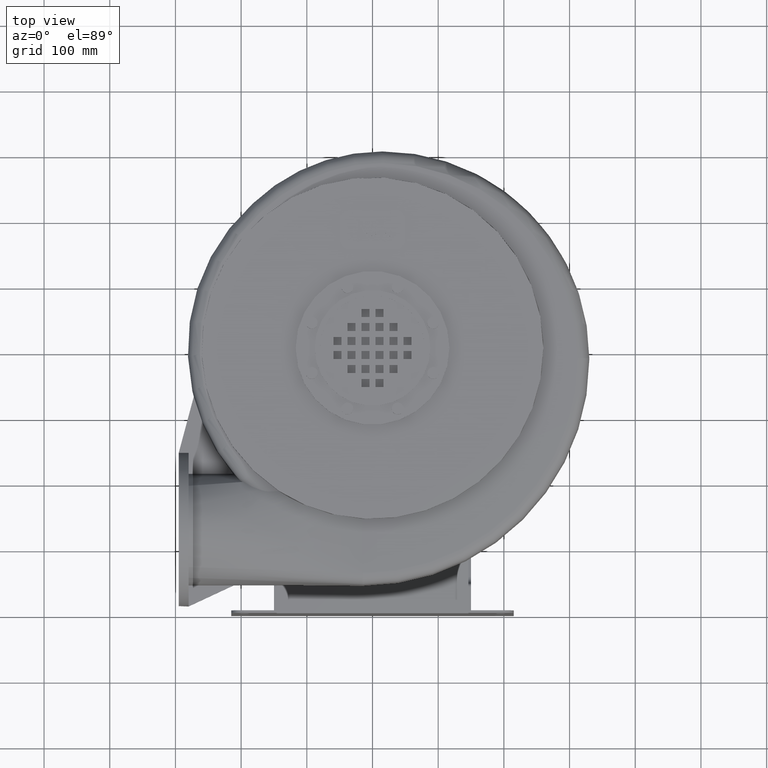
[diagram: clean part render]
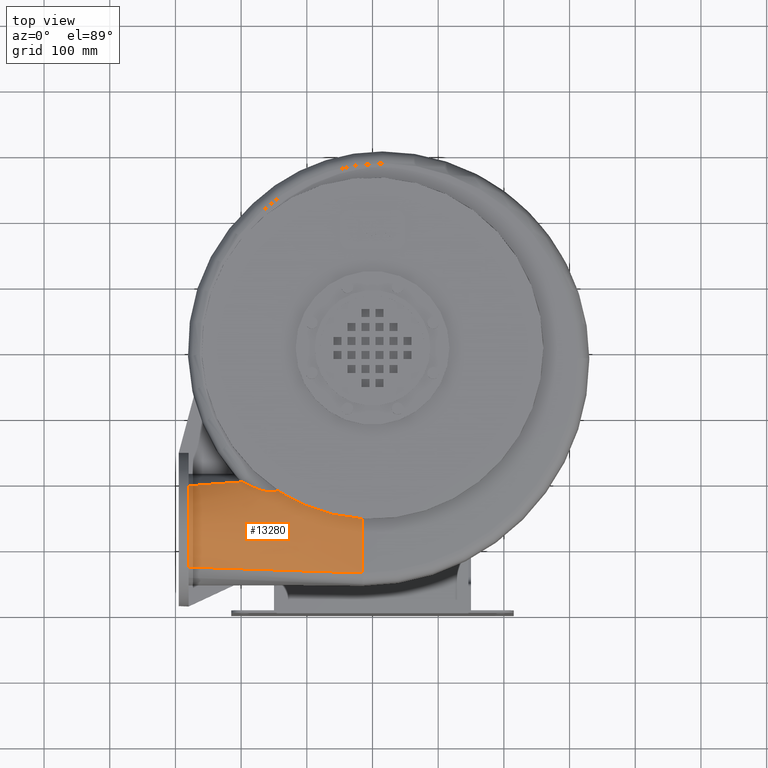
[diagram: same view with one face highlighted and labeled with its STEP entity id]
A machine part, top view. The second image highlights one B-rep face of the part: STEP entity #13280.
In plain terms, the highlighted face is a freeform B-spline surface patch.
Its self-contained STEP definition (entity closure, byte-faithful):
#1196=LINE('',#23119,#2368);
#1197=LINE('',#23121,#2369);
#1198=LINE('',#23122,#2370);
#2368=VECTOR('',#16576,9.02669988294015);
#2369=VECTOR('',#16577,56.5967453950647);
#2370=VECTOR('',#16578,16.809607673647);
#2730=B_SPLINE_CURVE_WITH_KNOTS('',3,(#22842,#22843,#22844,#22845,#22846,
#22847,#22848,#22849),.UNSPECIFIED.,.F.,.F.,(4,2,2,4),(0.,2.90405011560865,
4.6215907110657,5.10169561148826),.UNSPECIFIED.);
#2735=B_SPLINE_CURVE_WITH_KNOTS('',3,(#22955,#22956,#22957,#22958),
 .UNSPECIFIED.,.F.,.F.,(4,4),(0.,1.),.UNSPECIFIED.);
#2742=B_SPLINE_CURVE_WITH_KNOTS('',3,(#23100,#23101,#23102,#23103,#23104,
#23105,#23106,#23107),.UNSPECIFIED.,.F.,.F.,(4,2,2,4),(-13.3114565568221,
-9.26016200487189,-4.28879452915499,-2.76275450276327),.UNSPECIFIED.);
#2743=B_SPLINE_CURVE_WITH_KNOTS('',3,(#23108,#23109,#23110,#23111),
 .UNSPECIFIED.,.F.,.F.,(4,4),(10.6015815525924,12.0835696184824),
 .UNSPECIFIED.);
#2744=B_SPLINE_CURVE_WITH_KNOTS('',3,(#23113,#23114,#23115,#23116),
 .UNSPECIFIED.,.F.,.F.,(4,4),(0.687906346211005,1.),.UNSPECIFIED.);
#2922=B_SPLINE_SURFACE_WITH_KNOTS('',3,3,((#23066,#23067,#23068,#23069),
(#23070,#23071,#23072,#23073),(#23074,#23075,#23076,#23077),(#23078,#23079,
#23080,#23081),(#23082,#23083,#23084,#23085),(#23086,#23087,#23088,#23089),
(#23090,#23091,#23092,#23093),(#23094,#23095,#23096,#23097)),
 .UNSPECIFIED.,.F.,.F.,.F.,(4,1,1,1,1,4),(4,4),(0.,0.142857142857143,0.285714285714286,
0.571428571428571,0.857142857142857,1.),(0.,1.),.UNSPECIFIED.);
#3822=FACE_OUTER_BOUND('',#4644,.T.);
#4644=EDGE_LOOP('',(#11300,#11301,#11302,#11303,#11304,#11305,#11306,#11307,
#11308));
#4927=CIRCLE('',#14006,85.);
#6090=VERTEX_POINT('',#22806);
#6098=VERTEX_POINT('',#22840);
#6099=VERTEX_POINT('',#22841);
#6113=VERTEX_POINT('',#22954);
#6122=VERTEX_POINT('',#23098);
#6123=VERTEX_POINT('',#23099);
#6124=VERTEX_POINT('',#23112);
#6125=VERTEX_POINT('',#23118);
#6126=VERTEX_POINT('',#23120);
#7843=EDGE_CURVE('',#6098,#6099,#2730,.T.);
#7866=EDGE_CURVE('',#6090,#6113,#2735,.T.);
#7879=EDGE_CURVE('',#6122,#6123,#2742,.T.);
#7880=EDGE_CURVE('',#6099,#6123,#2743,.T.);
#7881=EDGE_CURVE('',#6098,#6124,#2744,.T.);
#7882=EDGE_CURVE('',#6113,#6124,#4927,.T.);
#7883=EDGE_CURVE('',#6090,#6125,#1196,.T.);
#7884=EDGE_CURVE('',#6125,#6126,#1197,.T.);
#7885=EDGE_CURVE('',#6122,#6126,#1198,.T.);
#11300=ORIENTED_EDGE('',*,*,#7879,.T.);
#11301=ORIENTED_EDGE('',*,*,#7880,.F.);
#11302=ORIENTED_EDGE('',*,*,#7843,.F.);
#11303=ORIENTED_EDGE('',*,*,#7881,.T.);
#11304=ORIENTED_EDGE('',*,*,#7882,.F.);
#11305=ORIENTED_EDGE('',*,*,#7866,.F.);
#11306=ORIENTED_EDGE('',*,*,#7883,.T.);
#11307=ORIENTED_EDGE('',*,*,#7884,.T.);
#11308=ORIENTED_EDGE('',*,*,#7885,.F.);
#13280=ADVANCED_FACE('',(#3822),#2922,.T.);
#14006=AXIS2_PLACEMENT_3D('',#23117,#16574,#16575);
#16574=DIRECTION('center_axis',(-1.,-5.51295955848887E-15,2.21867473071668E-15));
#16575=DIRECTION('ref_axis',(-2.21867473071667E-15,-4.67343487721603E-16,
-1.));
#16576=DIRECTION('',(-5.51295955848887E-15,1.,-4.67343487721591E-16));
#16577=DIRECTION('',(-5.51295955848887E-15,1.,-4.67343487721591E-16));
#16578=DIRECTION('',(5.51295955848887E-15,-1.,4.67343487721591E-16));
#22806=CARTESIAN_POINT('',(-14.9999999999986,57.9999999999984,450.499999999998));
#22840=CARTESIAN_POINT('',(-197.295181745916,196.831053374247,441.033999099304));
#22841=CARTESIAN_POINT('',(-157.587203799283,182.060427905473,450.499999999998));
#22842=CARTESIAN_POINT('Ctrl Pts',(-197.295181745916,196.831053374247,441.033999099304));
#22843=CARTESIAN_POINT('Ctrl Pts',(-189.828588804997,192.133014794327,445.01947993747));
#22844=CARTESIAN_POINT('Ctrl Pts',(-180.857535945571,187.978626392138,447.475752044286));
#22845=CARTESIAN_POINT('Ctrl Pts',(-168.574453891699,183.710993882681,449.704578514907));
#22846=CARTESIAN_POINT('Ctrl Pts',(-164.200885050813,182.559406574317,450.211587700185));
#22847=CARTESIAN_POINT('Ctrl Pts',(-159.656877136107,182.074567111144,450.462846296018));
#22848=CARTESIAN_POINT('Ctrl Pts',(-158.603961252658,182.01557164368,450.499999999998));
#22849=CARTESIAN_POINT('Ctrl Pts',(-157.587203799283,182.060427905472,450.499999999998));
#22954=CARTESIAN_POINT('',(-279.999999999999,67.0329588519807,445.16769370456));
#22955=CARTESIAN_POINT('Ctrl Pts',(-14.9999999999986,57.9999999999984,450.499999999998));
#22956=CARTESIAN_POINT('Ctrl Pts',(-103.333333333332,61.0109862839925,448.722564568185));
#22957=CARTESIAN_POINT('Ctrl Pts',(-191.666666666665,64.0219725679866,446.945129136373));
#22958=CARTESIAN_POINT('Ctrl Pts',(-279.999999999999,67.0329588519807,445.16769370456));
#23066=CARTESIAN_POINT('Ctrl Pts',(-14.9999999999986,57.9999999999984,450.499999999998));
#23067=CARTESIAN_POINT('Ctrl Pts',(-103.333333333332,61.0109862839925,448.722564568185));
#23068=CARTESIAN_POINT('Ctrl Pts',(-191.666666666665,64.0219725679866,446.945129136373));
#23069=CARTESIAN_POINT('Ctrl Pts',(-279.999999999999,67.0329588519807,445.16769370456));
#23070=CARTESIAN_POINT('Ctrl Pts',(-14.9999999999987,65.2380952380936,450.499999999998));
#23071=CARTESIAN_POINT('Ctrl Pts',(-103.333333333332,67.4505531265338,450.231483107123));
#23072=CARTESIAN_POINT('Ctrl Pts',(-191.666666666665,69.6660780192344,449.954373453984));
#23073=CARTESIAN_POINT('Ctrl Pts',(-279.999999999999,71.8785359076745,449.685856561109));
#23074=CARTESIAN_POINT('Ctrl Pts',(-14.9999999999988,79.7142857142841,450.499999999998));
#23075=CARTESIAN_POINT('Ctrl Pts',(-103.333333333332,80.6876974659833,452.856827533023));
#23076=CARTESIAN_POINT('Ctrl Pts',(-191.666666666665,81.6607268638071,455.216051596125));
#23077=CARTESIAN_POINT('Ctrl Pts',(-279.999999999999,82.6341386155062,457.57287912915));
#23078=CARTESIAN_POINT('Ctrl Pts',(-14.9999999999989,108.666666666665,450.499999999998));
#23079=CARTESIAN_POINT('Ctrl Pts',(-103.333333333332,108.179005437688,456.331094247914));
#23080=CARTESIAN_POINT('Ctrl Pts',(-191.666666666665,107.69219983285,462.156932385368));
#23081=CARTESIAN_POINT('Ctrl Pts',(-279.999999999999,107.204538603873,467.988026633284));
#23082=CARTESIAN_POINT('Ctrl Pts',(-14.9999999999991,144.857142857141,450.499999999998));
#23083=CARTESIAN_POINT('Ctrl Pts',(-103.333333333332,143.639820482307,456.885987367426));
#23084=CARTESIAN_POINT('Ctrl Pts',(-191.666666666666,142.424830225879,463.277863383267));
#23085=CARTESIAN_POINT('Ctrl Pts',(-279.999999999999,141.207507851045,469.663850750694));
#23086=CARTESIAN_POINT('Ctrl Pts',(-14.9999999999993,181.047619047617,450.499999999998));
#23087=CARTESIAN_POINT('Ctrl Pts',(-103.333333333333,178.135572294238,452.273037447155));
#23088=CARTESIAN_POINT('Ctrl Pts',(-191.666666666666,175.219522569361,454.04108719959));
#23089=CARTESIAN_POINT('Ctrl Pts',(-279.999999999999,172.307475815982,455.814124646747));
#23090=CARTESIAN_POINT('Ctrl Pts',(-14.9999999999994,202.761904761903,450.499999999998));
#23091=CARTESIAN_POINT('Ctrl Pts',(-103.333333333333,197.39515253783,447.621745049386));
#23092=CARTESIAN_POINT('Ctrl Pts',(-191.666666666666,192.034590098618,444.750754341069));
#23093=CARTESIAN_POINT('Ctrl Pts',(-279.999999999999,186.667837874544,441.872499390457));
#23094=CARTESIAN_POINT('Ctrl Pts',(-14.9999999999995,209.999999999998,450.499999999998));
#23095=CARTESIAN_POINT('Ctrl Pts',(-103.333333333333,203.618827767138,445.913134867928));
#23096=CARTESIAN_POINT('Ctrl Pts',(-191.666666666666,197.237655534277,441.326269735859));
#23097=CARTESIAN_POINT('Ctrl Pts',(-279.999999999999,190.856483301416,436.739404603789));
#23098=CARTESIAN_POINT('',(-14.9999999999991,140.43305295165,450.499999999998));
#23099=CARTESIAN_POINT('',(-142.781724143644,182.713600861515,450.499999999998));
#23100=CARTESIAN_POINT('Ctrl Pts',(-14.9999999999991,140.43305295165,450.499999999998));
#23101=CARTESIAN_POINT('Ctrl Pts',(-33.5808836537861,141.506815454835,451.671003389663));
#23102=CARTESIAN_POINT('Ctrl Pts',(-51.9716097831222,144.572250870628,452.834865158577));
#23103=CARTESIAN_POINT('Ctrl Pts',(-91.7819960455068,155.675147237078,454.519228352195));
#23104=CARTESIAN_POINT('Ctrl Pts',(-111.263216289344,164.211606478014,454.728022882931));
#23105=CARTESIAN_POINT('Ctrl Pts',(-133.305536550185,176.695202576376,452.267791296988));
#23106=CARTESIAN_POINT('Ctrl Pts',(-138.183374886774,179.691965647743,451.496151730616));
#23107=CARTESIAN_POINT('Ctrl Pts',(-142.781724143644,182.713600861515,450.499999999998));
#23108=CARTESIAN_POINT('Ctrl Pts',(-157.587203799283,182.060427905473,450.499999999998));
#23109=CARTESIAN_POINT('Ctrl Pts',(-152.65204391407,182.278152224153,450.499999999998));
#23110=CARTESIAN_POINT('Ctrl Pts',(-147.716884028857,182.495876542834,450.499999999998));
#23111=CARTESIAN_POINT('Ctrl Pts',(-142.781724143644,182.713600861515,450.499999999998));
#23112=CARTESIAN_POINT('',(-279.999999999999,190.856483301416,436.739404603789));
#23113=CARTESIAN_POINT('Ctrl Pts',(-197.295181745916,196.831053374247,441.033999099304));
#23114=CARTESIAN_POINT('Ctrl Pts',(-224.863454497277,194.839530016637,439.602467600799));
#23115=CARTESIAN_POINT('Ctrl Pts',(-252.431727248638,192.848006659026,438.170936102294));
#23116=CARTESIAN_POINT('Ctrl Pts',(-279.999999999999,190.856483301416,436.739404603789));
#23117=CARTESIAN_POINT('Origin',(-279.999999999999,124.999999999997,382.999999999998));
#23118=CARTESIAN_POINT('',(-14.9999999999987,67.0266998829386,450.499999999998));
#23119=CARTESIAN_POINT('',(-14.9999999999995,208.957867107998,450.499999999998));
#23120=CARTESIAN_POINT('',(-14.999999999999,123.623445278003,450.499999999998));
#23121=CARTESIAN_POINT('',(-14.9999999999995,208.957867107998,450.499999999998));
#23122=CARTESIAN_POINT('',(-14.9999999999997,252.612602709436,450.499999999998));